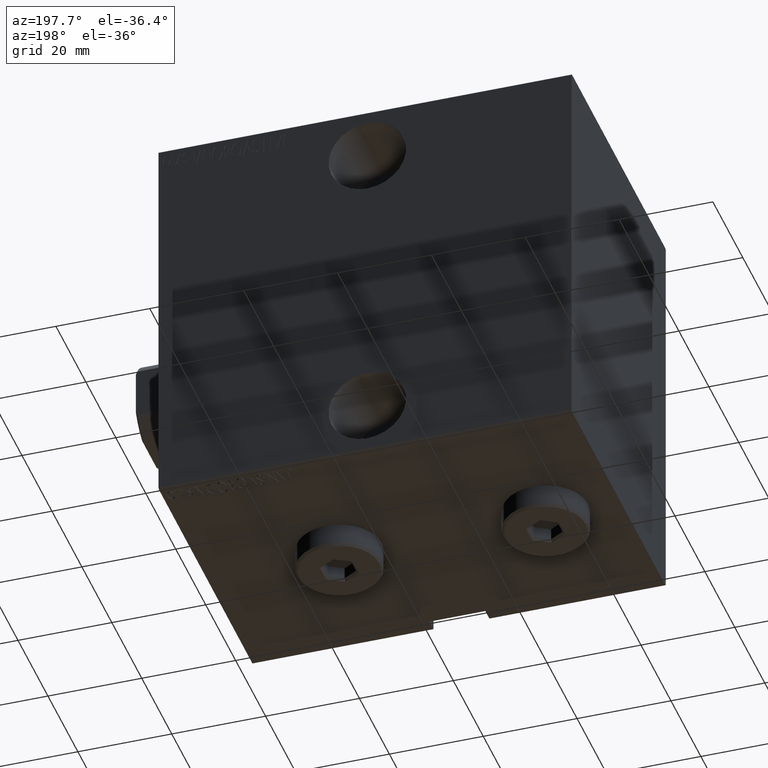
[diagram: clean part render]
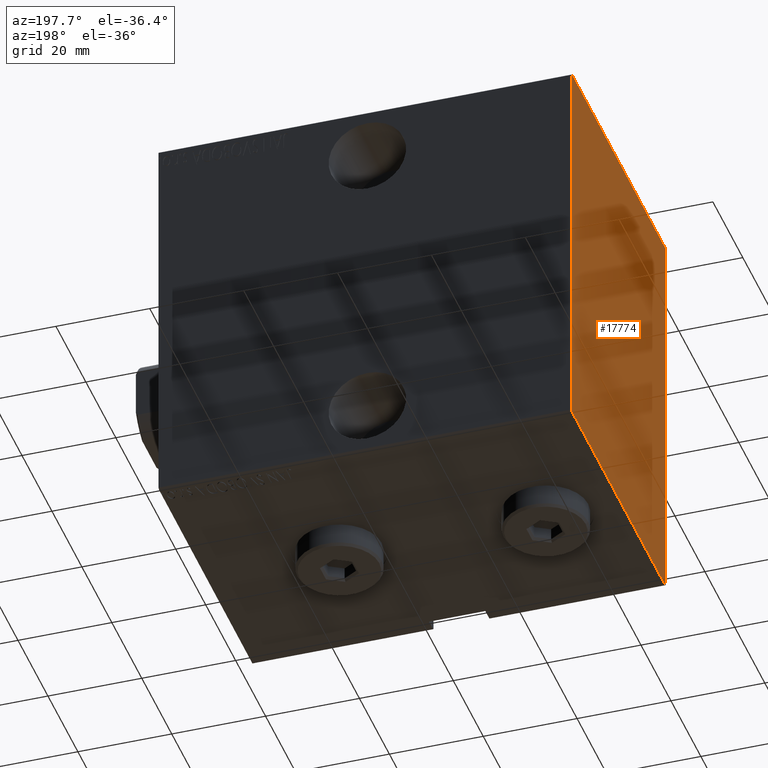
[diagram: same view with one face highlighted and labeled with its STEP entity id]
A machine part, auxiliary view. The second image highlights one B-rep face of the part: STEP entity #17774.
In plain terms, the highlighted planar face has unit normal (-1, 0, 0).
Its self-contained STEP definition (entity closure, byte-faithful):
#165 = DIRECTION ( 'NONE',  ( 1.000000000000000000, 0.000000000000000000, 0.000000000000000000 ) ) ;
#827 = ORIENTED_EDGE ( 'NONE', *, *, #6053, .T. ) ;
#1403 = VECTOR ( 'NONE', #5160, 1000.000000000000000 ) ;
#3051 = CARTESIAN_POINT ( 'NONE',  ( 88.00000000000000000, -36.84999999999963904, -36.85000000000048459 ) ) ;
#3464 = AXIS2_PLACEMENT_3D ( 'NONE', #27573, #165, #13782 ) ;
#4112 = CARTESIAN_POINT ( 'NONE',  ( 88.00000000000000000, -31.49999999999999289, -42.20000000000000995 ) ) ;
#4160 = LINE ( 'NONE', #43862, #17782 ) ;
#4262 = EDGE_CURVE ( 'NONE', #25365, #36883, #33572, .T. ) ;
#5134 = EDGE_CURVE ( 'NONE', #40749, #25365, #4160, .T. ) ;
#5160 = DIRECTION ( 'NONE',  ( -0.000000000000000000, -0.7071067811865721087, 0.7071067811865230368 ) ) ;
#5840 = EDGE_CURVE ( 'NONE', #26693, #9578, #11623, .T. ) ;
#5919 = ORIENTED_EDGE ( 'NONE', *, *, #5840, .T. ) ;
#6053 = EDGE_CURVE ( 'NONE', #13314, #14134, #13620, .T. ) ;
#6156 = CARTESIAN_POINT ( 'NONE',  ( 88.00000000000000000, 31.50000000000000000, 42.20000000000001705 ) ) ;
#6345 = ORIENTED_EDGE ( 'NONE', *, *, #15368, .T. ) ;
#6633 = DIRECTION ( 'NONE',  ( -0.000000000000000000, 0.7071067811865393571, 0.7071067811865556774 ) ) ;
#6858 = FACE_OUTER_BOUND ( 'NONE', #40128, .T. ) ;
#8271 = CARTESIAN_POINT ( 'NONE',  ( 88.00000000000000000, 36.84999999999892140, 36.85000000000147224 ) ) ;
#9300 = VECTOR ( 'NONE', #16952, 1000.000000000000114 ) ;
#9578 = VERTEX_POINT ( 'NONE', #12621 ) ;
#10332 = ORIENTED_EDGE ( 'NONE', *, *, #4262, .T. ) ;
#10353 = CARTESIAN_POINT ( 'NONE',  ( 88.00000000000000000, 31.50000000000000000, 42.50000000000000000 ) ) ;
#10785 = LINE ( 'NONE', #10353, #36108 ) ;
#11131 = DIRECTION ( 'NONE',  ( 0.000000000000000000, 0.000000000000000000, -1.000000000000000000 ) ) ;
#11623 = LINE ( 'NONE', #8271, #1403 ) ;
#12621 = CARTESIAN_POINT ( 'NONE',  ( 88.00000000000000000, 31.19999999999999218, 42.50000000000000000 ) ) ;
#13314 = VERTEX_POINT ( 'NONE', #36270 ) ;
#13620 = LINE ( 'NONE', #41412, #9300 ) ;
#13782 = DIRECTION ( 'NONE',  ( 0.000000000000000000, 0.000000000000000000, -1.000000000000000000 ) ) ;
#14134 = VERTEX_POINT ( 'NONE', #39842 ) ;
#14894 = EDGE_CURVE ( 'NONE', #20736, #40749, #23325, .T. ) ;
#15368 = EDGE_CURVE ( 'NONE', #9578, #13314, #10785, .T. ) ;
#15403 = CARTESIAN_POINT ( 'NONE',  ( 88.00000000000000000, -31.19999999999998508, -42.50000000000000711 ) ) ;
#16952 = DIRECTION ( 'NONE',  ( 0.000000000000000000, -0.7071067811865393571, -0.7071067811865556774 ) ) ;
#17774 = ADVANCED_FACE ( 'NONE', ( #6858 ), #30689, .T. ) ;
#17782 = VECTOR ( 'NONE', #41569, 1000.000000000000000 ) ;
#19979 = VECTOR ( 'NONE', #33961, 1000.000000000000000 ) ;
#20056 = EDGE_CURVE ( 'NONE', #14134, #20736, #31820, .T. ) ;
#20396 = LINE ( 'NONE', #40418, #19979 ) ;
#20736 = VERTEX_POINT ( 'NONE', #4112 ) ;
#21464 = DIRECTION ( 'NONE',  ( 0.000000000000000000, -1.000000000000000000, -2.202823461557850341E-16 ) ) ;
#23325 = LINE ( 'NONE', #3051, #31816 ) ;
#24589 = EDGE_CURVE ( 'NONE', #36883, #26693, #20396, .T. ) ;
#25365 = VERTEX_POINT ( 'NONE', #42007 ) ;
#26693 = VERTEX_POINT ( 'NONE', #6156 ) ;
#27573 = CARTESIAN_POINT ( 'NONE',  ( 88.00000000000000000, 0.000000000000000000, 0.000000000000000000 ) ) ;
#29793 = DIRECTION ( 'NONE',  ( -0.000000000000000000, 0.7071067811865556774, -0.7071067811865393571 ) ) ;
#30067 = CARTESIAN_POINT ( 'NONE',  ( 88.00000000000000000, 31.50000000000001421, -42.20000000000000284 ) ) ;
#30689 = PLANE ( 'NONE',  #3464 ) ;
#31198 = ORIENTED_EDGE ( 'NONE', *, *, #24589, .T. ) ;
#31816 = VECTOR ( 'NONE', #29793, 1000.000000000000000 ) ;
#31820 = LINE ( 'NONE', #38937, #34102 ) ;
#32923 = CARTESIAN_POINT ( 'NONE',  ( 88.00000000000000000, 36.85000000000037090, -36.84999999999952536 ) ) ;
#33572 = LINE ( 'NONE', #32923, #34926 ) ;
#33961 = DIRECTION ( 'NONE',  ( 0.000000000000000000, -1.632680918566406300E-16, 1.000000000000000000 ) ) ;
#34102 = VECTOR ( 'NONE', #11131, 1000.000000000000000 ) ;
#34868 = ORIENTED_EDGE ( 'NONE', *, *, #20056, .T. ) ;
#34926 = VECTOR ( 'NONE', #6633, 1000.000000000000000 ) ;
#36108 = VECTOR ( 'NONE', #21464, 1000.000000000000000 ) ;
#36270 = CARTESIAN_POINT ( 'NONE',  ( 88.00000000000000000, -31.19999999999997797, 42.49999999999998579 ) ) ;
#36883 = VERTEX_POINT ( 'NONE', #30067 ) ;
#38428 = ORIENTED_EDGE ( 'NONE', *, *, #5134, .T. ) ;
#38937 = CARTESIAN_POINT ( 'NONE',  ( 88.00000000000000000, -31.49999999999999289, 42.49999999999998579 ) ) ;
#39842 = CARTESIAN_POINT ( 'NONE',  ( 88.00000000000000000, -31.49999999999999289, 42.19999999999996732 ) ) ;
#40128 = EDGE_LOOP ( 'NONE', ( #38428, #10332, #31198, #5919, #6345, #827, #34868, #42241 ) ) ;
#40418 = CARTESIAN_POINT ( 'NONE',  ( 88.00000000000000000, 31.50000000000001421, -42.50000000000000711 ) ) ;
#40749 = VERTEX_POINT ( 'NONE', #15403 ) ;
#41412 = CARTESIAN_POINT ( 'NONE',  ( 88.00000000000000000, -36.85000000000034248, 36.84999999999949694 ) ) ;
#41569 = DIRECTION ( 'NONE',  ( 0.000000000000000000, 1.000000000000000000, 0.000000000000000000 ) ) ;
#42007 = CARTESIAN_POINT ( 'NONE',  ( 88.00000000000000000, 31.20000000000001350, -42.50000000000000711 ) ) ;
#42241 = ORIENTED_EDGE ( 'NONE', *, *, #14894, .T. ) ;
#43862 = CARTESIAN_POINT ( 'NONE',  ( 88.00000000000000000, -31.49999999999999289, -42.50000000000000711 ) ) ;